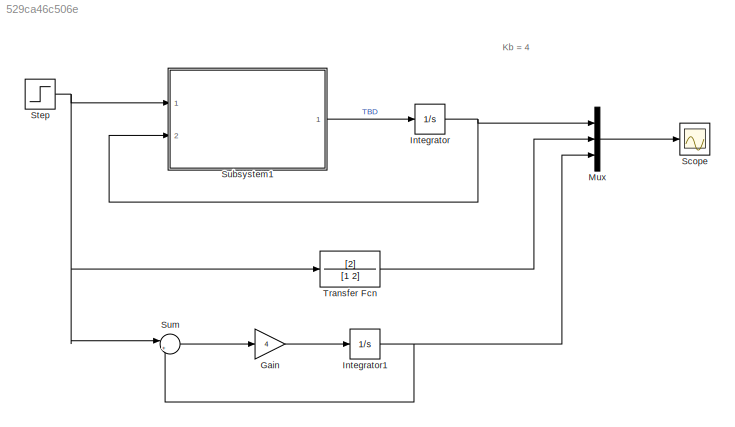
MODEL slx_529ca46c506e
KIND model
CONFIG AbsTol = auto
CONFIG EnableMultiTasking = off
CONFIG FixedStep = 0.01
CONFIG MaxStep = auto
CONFIG MinStep = auto
CONFIG RelTol = 1e-3
CONFIG SampleTimeConstraint = Unconstrained
CONFIG Solver = ode8
CONFIG SolverName = ode8
CONFIG StartTime = 0.0
CONFIG StopTime = 10.0
BLOCK [Gain] Gain
  Gain = 4
  OutDataTypeStr = Inherit: Inherit via internal rule
  ParamDataTypeStr = Inherit: Inherit via internal rule
  SaturateOnIntegerOverflow = off
BLOCK [Integrator] Integrator
  Ports = [1, 1]
BLOCK [Integrator] Integrator1
  Ports = [1, 1]
BLOCK [Mux] Mux
  DisplayOption = bar
  Inputs = 3
  Ports = [3, 1]
BLOCK [Scope] Scope
  Floating = off
  NumInputPorts = 1
  Ports = [1]
  ScopeSpecificationString = Simulink.scopes.TimeScopeBlockCfg('CurrentConfiguration', extmgr.ConfigurationSet(extmgr.Configuration('Core','General UI',true),extmgr.Configuration('Core','Source UI',true),extmgr.Configuration('Sources','WiredSimulink',true),extmgr.Configuration('Visuals','Time Domain',true,'SerializedDisplays',{struct('MinYLimReal','-0.125','MaxYLimReal','1.125','YLabelReal','','MinYLimMag','0.00000','MaxYLimM...<+1403ch>
BLOCK [Step] Step
  SampleTime = 0
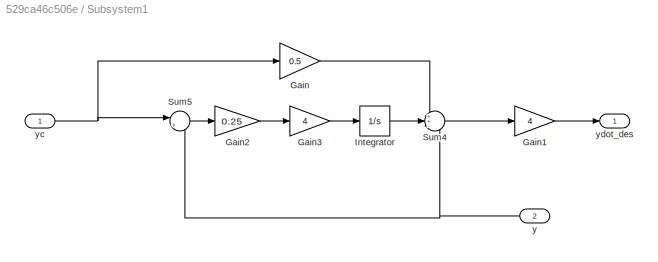
BLOCK [SubSystem] Subsystem1
  Ports = [2, 1]
  RequestExecContextInheritance = off
BLOCK [Gain] Subsystem1/Gain
  Gain = 0.5
  OutDataTypeStr = Inherit: Inherit via internal rule
  ParamDataTypeStr = Inherit: Inherit via internal rule
  SaturateOnIntegerOverflow = off
BLOCK [Gain] Subsystem1/Gain1
  Gain = 4
  OutDataTypeStr = Inherit: Inherit via internal rule
  ParamDataTypeStr = Inherit: Inherit via internal rule
  SaturateOnIntegerOverflow = off
BLOCK [Gain] Subsystem1/Gain2
  Gain = 0.25
  OutDataTypeStr = Inherit: Inherit via internal rule
  ParamDataTypeStr = Inherit: Inherit via internal rule
  SaturateOnIntegerOverflow = off
BLOCK [Gain] Subsystem1/Gain3
  Gain = 4
  OutDataTypeStr = Inherit: Inherit via internal rule
  ParamDataTypeStr = Inherit: Inherit via internal rule
  SaturateOnIntegerOverflow = off
BLOCK [Integrator] Subsystem1/Integrator
  Ports = [1, 1]
BLOCK [Sum] Subsystem1/Sum4
  IconShape = round
  InputSameDT = off
  Inputs = ++-
  OutDataTypeStr = Inherit: Inherit via internal rule
  Ports = [3, 1]
  SaturateOnIntegerOverflow = off
BLOCK [Sum] Subsystem1/Sum5
  IconShape = round
  InputSameDT = off
  Inputs = |+-
  OutDataTypeStr = Inherit: Inherit via internal rule
  Ports = [2, 1]
  SaturateOnIntegerOverflow = off
BLOCK [Inport] Subsystem1/y
  IconDisplay = Port number
  Port = 2
BLOCK [Inport] Subsystem1/yc
  IconDisplay = Port number
BLOCK [Outport] Subsystem1/ydot_des
  IconDisplay = Port number
BLOCK [Sum] Sum
  IconShape = round
  InputSameDT = off
  Inputs = |+-
  OutDataTypeStr = Inherit: Inherit via internal rule
  Ports = [2, 1]
  SaturateOnIntegerOverflow = off
BLOCK [TransferFcn] Transfer Fcn
  Denominator = [1 2]
  Numerator = [2]
ANNOTATION (root): Kb = 4
LINE Gain:1 -> Integrator1:1
NET Integrator1:1 -> Mux:3, Sum:2
NET Integrator:1 -> Mux:1, Subsystem1:2
LINE Mux:1 -> Scope:1
NET Step:1 -> Subsystem1:1, Sum:1, Transfer Fcn:1
LINE Subsystem1/Gain1:1 -> Subsystem1/ydot_des:1
LINE Subsystem1/Gain2:1 -> Subsystem1/Gain3:1
LINE Subsystem1/Gain3:1 -> Subsystem1/Integrator:1
LINE Subsystem1/Gain:1 -> Subsystem1/Sum4:1
LINE Subsystem1/Integrator:1 -> Subsystem1/Sum4:2
LINE Subsystem1/Sum4:1 -> Subsystem1/Gain1:1
LINE Subsystem1/Sum5:1 -> Subsystem1/Gain2:1
NET Subsystem1/y:1 -> Subsystem1/Sum4:3, Subsystem1/Sum5:2
NET Subsystem1/yc:1 -> Subsystem1/Gain:1, Subsystem1/Sum5:1
LINE Subsystem1:1 -> Integrator:1
LINE Sum:1 -> Gain:1
LINE Transfer Fcn:1 -> Mux:2
note: NET lines group one-source signal fan-out (src -> all destinations, sorted); 1:1 wires keep LINE
